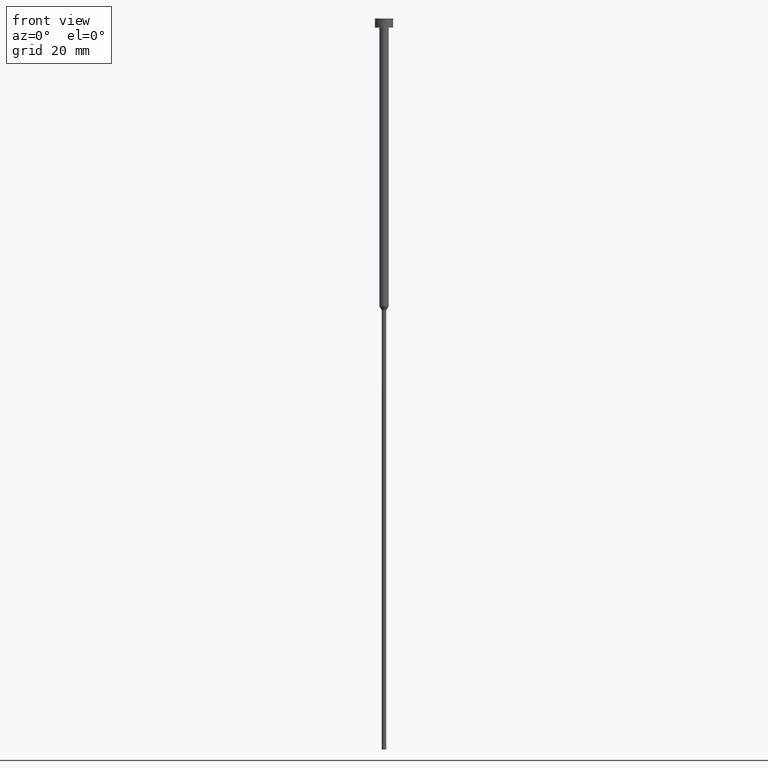
[diagram: clean part render]
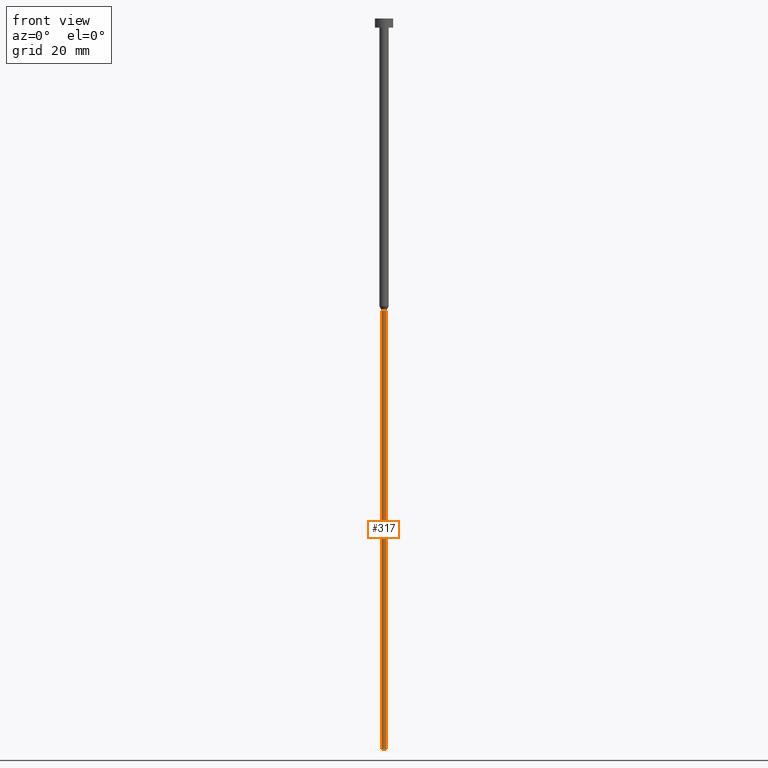
[diagram: same view with one face highlighted and labeled with its STEP entity id]
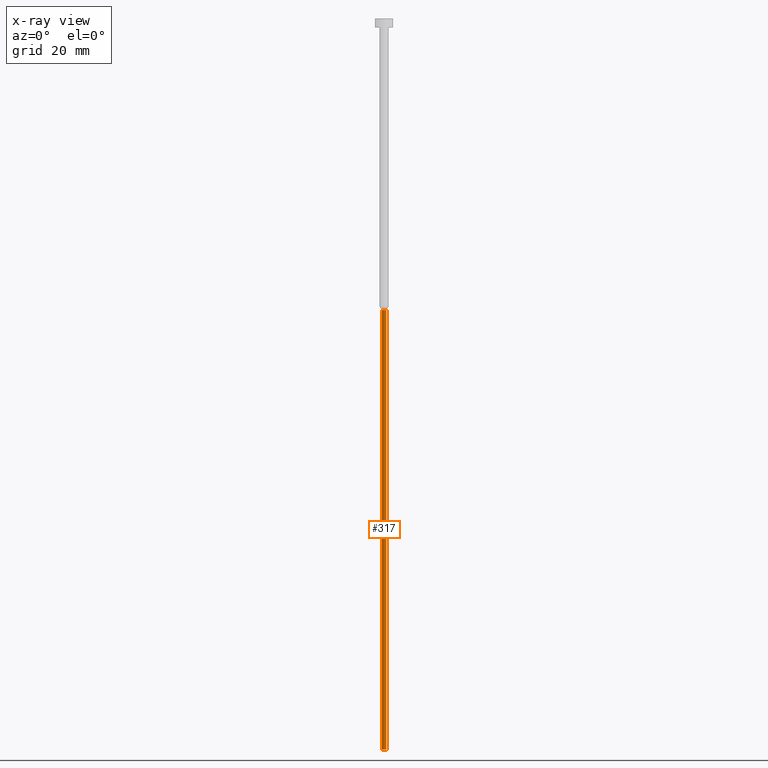
[diagram: x-ray of the same camera — body ghosted, the highlighted face saturated]
A machine part, front view. The second image highlights one B-rep face of the part: STEP entity #317.
The next image is the same camera in x-ray: the body ghosted, the highlighted face saturated — about 0% of this face is hidden behind the body in this view.
In plain terms, the highlighted cylindrical surface (edge-blend (fillet) strip) has radius 0.5 mm, axis along (-0, -0, 1).
Its self-contained STEP definition (entity closure, byte-faithful):
#15 = ORIENTED_EDGE ( 'NONE', *, *, #143, .F. ) ;
#19 = LINE ( 'NONE', #130, #311 ) ;
#33 = FACE_OUTER_BOUND ( 'NONE', #349, .T. ) ;
#36 = LINE ( 'NONE', #95, #260 ) ;
#37 = ORIENTED_EDGE ( 'NONE', *, *, #216, .T. ) ;
#39 = VERTEX_POINT ( 'NONE', #297 ) ;
#41 = AXIS2_PLACEMENT_3D ( 'NONE', #246, #324, #276 ) ;
#73 = DIRECTION ( 'NONE',  ( 1.000000000000000000, 0.000000000000000000, 0.000000000000000000 ) ) ;
#95 = CARTESIAN_POINT ( 'NONE',  ( 0.5000000000000000000, 0.000000000000000000, 0.000000000000000000 ) ) ;
#102 = ORIENTED_EDGE ( 'NONE', *, *, #328, .F. ) ;
#117 = CYLINDRICAL_SURFACE ( 'NONE', #236, 0.5000000000000000000 ) ;
#124 = VERTEX_POINT ( 'NONE', #243 ) ;
#130 = CARTESIAN_POINT ( 'NONE',  ( -0.5000000000000000000, 6.123233995736766036E-17, 0.000000000000000000 ) ) ;
#143 = EDGE_CURVE ( 'NONE', #289, #234, #19, .T. ) ;
#168 = CARTESIAN_POINT ( 'NONE',  ( -0.5000000000000000000, 6.123233995736766036E-17, -160.0000000000000000 ) ) ;
#182 = CARTESIAN_POINT ( 'NONE',  ( 0.000000000000000000, 0.000000000000000000, -63.86602540378444104 ) ) ;
#201 = CIRCLE ( 'NONE', #294, 0.5000000000000000000 ) ;
#213 = DIRECTION ( 'NONE',  ( 1.000000000000000000, 0.000000000000000000, 0.000000000000000000 ) ) ;
#216 = EDGE_CURVE ( 'NONE', #39, #124, #36, .T. ) ;
#234 = VERTEX_POINT ( 'NONE', #253 ) ;
#236 = AXIS2_PLACEMENT_3D ( 'NONE', #277, #250, #73 ) ;
#242 = CIRCLE ( 'NONE', #41, 0.5000000000000000000 ) ;
#243 = CARTESIAN_POINT ( 'NONE',  ( 0.5000000000000000000, 0.000000000000000000, -63.86602540378444104 ) ) ;
#246 = CARTESIAN_POINT ( 'NONE',  ( 0.000000000000000000, 0.000000000000000000, -160.0000000000000000 ) ) ;
#250 = DIRECTION ( 'NONE',  ( -0.000000000000000000, -0.000000000000000000, 1.000000000000000000 ) ) ;
#253 = CARTESIAN_POINT ( 'NONE',  ( -0.5000000000000000000, 6.123233995736766036E-17, -63.86602540378444104 ) ) ;
#259 = ORIENTED_EDGE ( 'NONE', *, *, #344, .T. ) ;
#260 = VECTOR ( 'NONE', #343, 1000.000000000000000 ) ;
#276 = DIRECTION ( 'NONE',  ( 1.000000000000000000, 0.000000000000000000, 0.000000000000000000 ) ) ;
#277 = CARTESIAN_POINT ( 'NONE',  ( 0.000000000000000000, 0.000000000000000000, 0.000000000000000000 ) ) ;
#289 = VERTEX_POINT ( 'NONE', #168 ) ;
#294 = AXIS2_PLACEMENT_3D ( 'NONE', #182, #295, #213 ) ;
#295 = DIRECTION ( 'NONE',  ( -0.000000000000000000, -0.000000000000000000, 1.000000000000000000 ) ) ;
#297 = CARTESIAN_POINT ( 'NONE',  ( 0.5000000000000000000, 0.000000000000000000, -160.0000000000000000 ) ) ;
#311 = VECTOR ( 'NONE', #352, 1000.000000000000000 ) ;
#317 = ADVANCED_FACE ( 'NONE', ( #33 ), #117, .T. ) ;
#324 = DIRECTION ( 'NONE',  ( -0.000000000000000000, -0.000000000000000000, 1.000000000000000000 ) ) ;
#328 = EDGE_CURVE ( 'NONE', #234, #124, #201, .T. ) ;
#343 = DIRECTION ( 'NONE',  ( -0.000000000000000000, -0.000000000000000000, 1.000000000000000000 ) ) ;
#344 = EDGE_CURVE ( 'NONE', #289, #39, #242, .T. ) ;
#349 = EDGE_LOOP ( 'NONE', ( #15, #259, #37, #102 ) ) ;
#352 = DIRECTION ( 'NONE',  ( -0.000000000000000000, -0.000000000000000000, 1.000000000000000000 ) ) ;